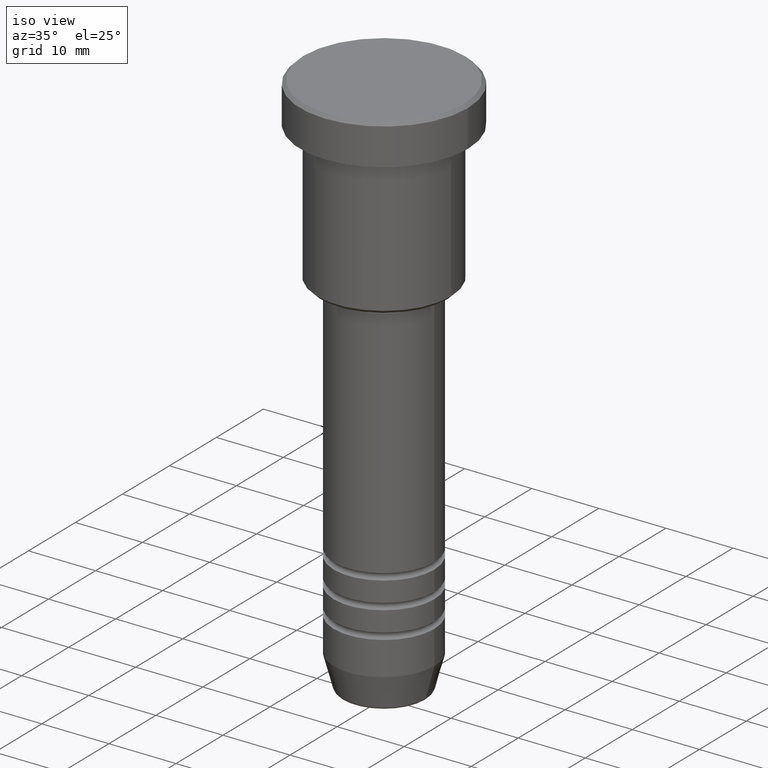
[diagram: clean part render]
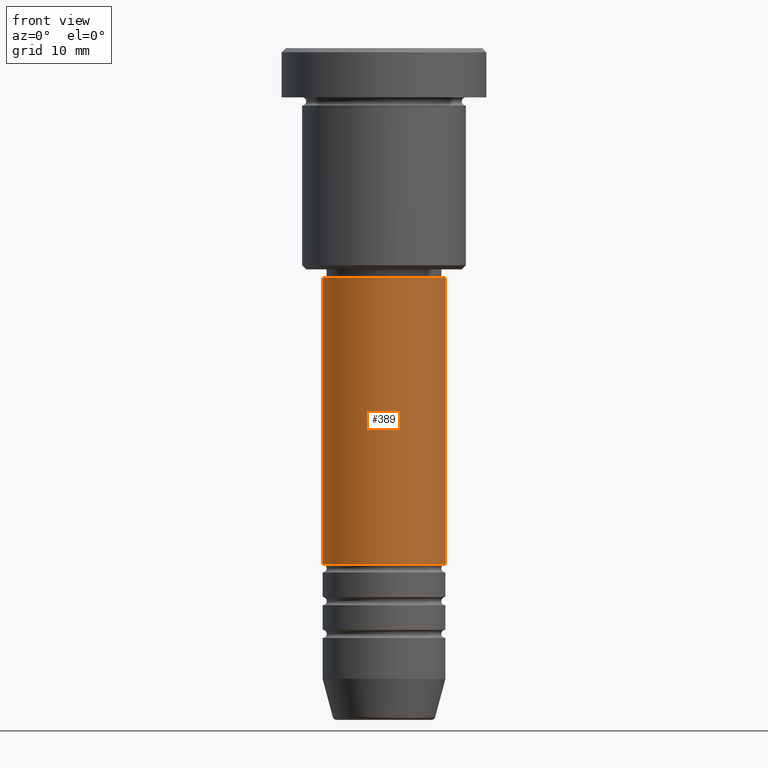
[diagram: tour spotlight — one face highlighted and labeled with its STEP entity id]
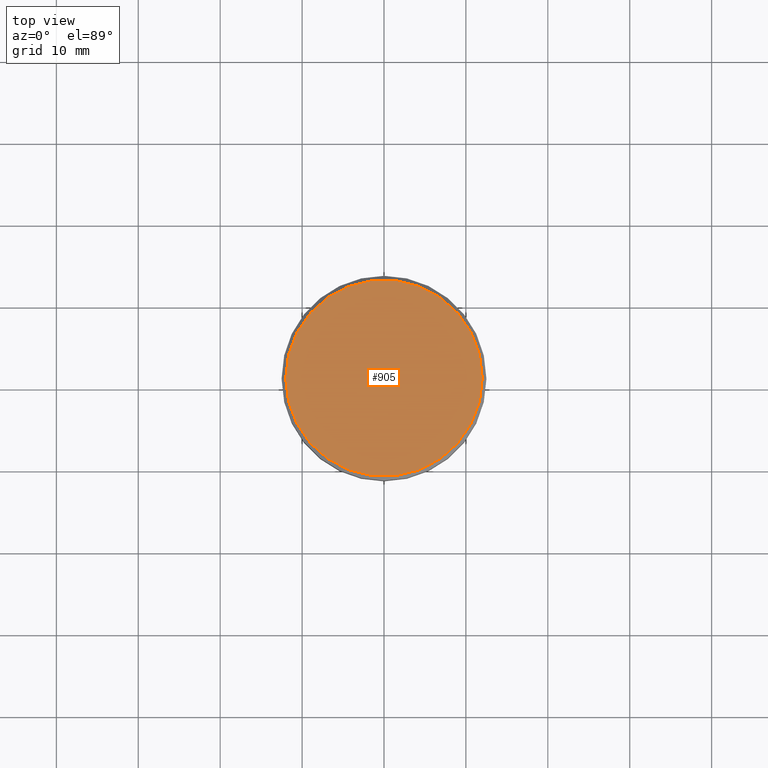
[diagram: tour spotlight — one face highlighted and labeled with its STEP entity id]
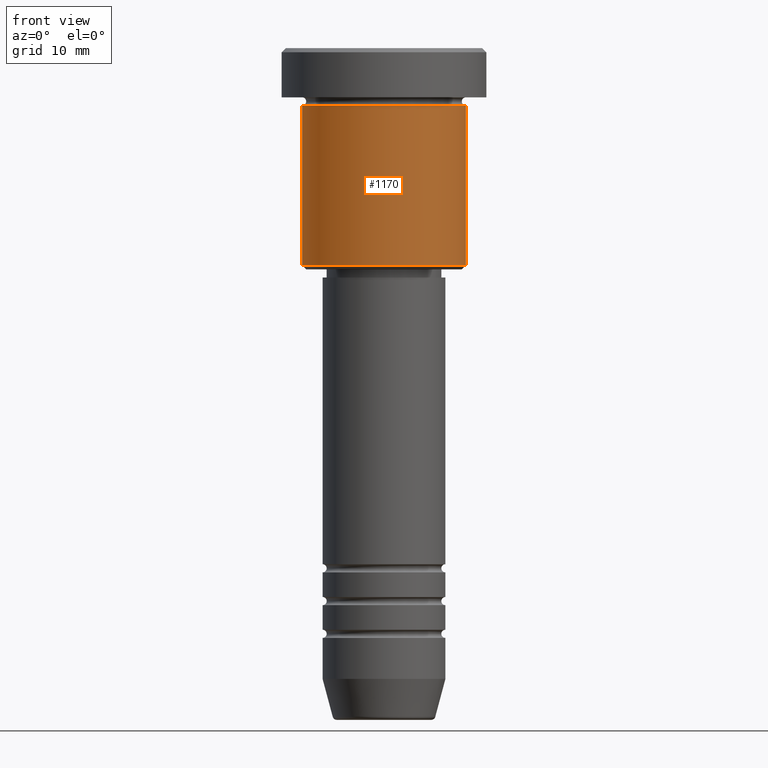
[diagram: tour spotlight — one face highlighted and labeled with its STEP entity id]
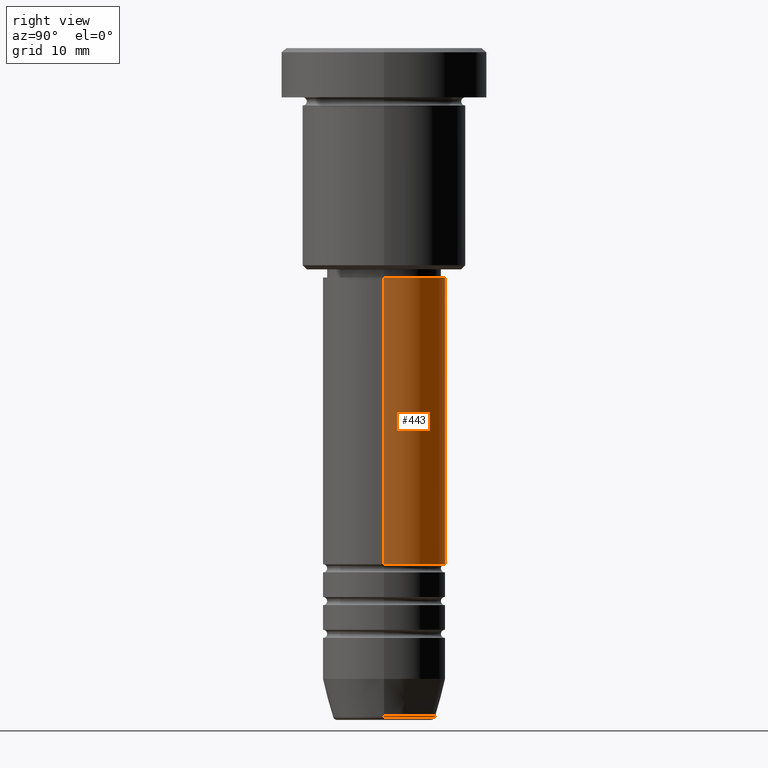
[diagram: tour spotlight — one face highlighted and labeled with its STEP entity id]
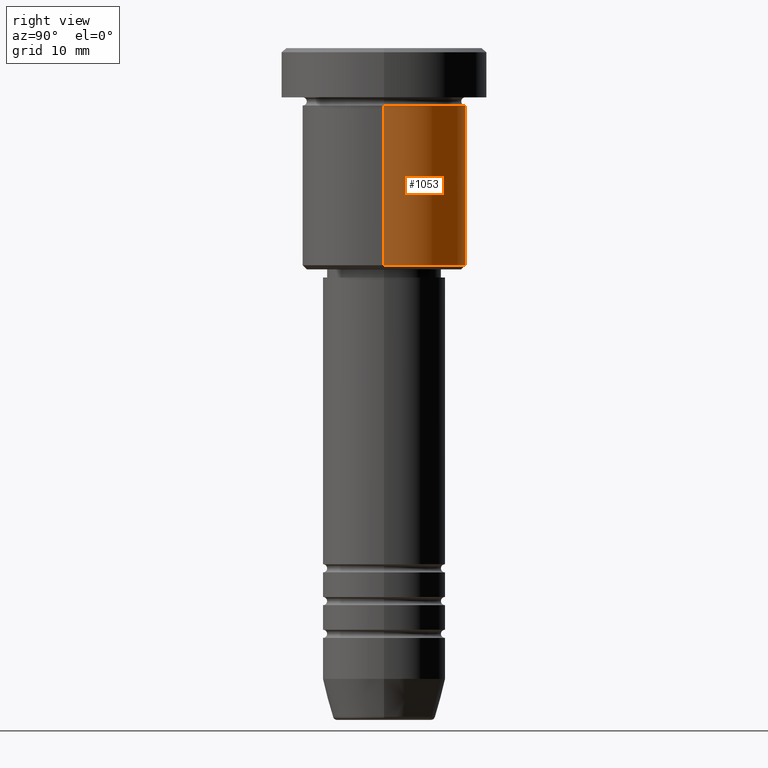
[diagram: tour spotlight — one face highlighted and labeled with its STEP entity id]
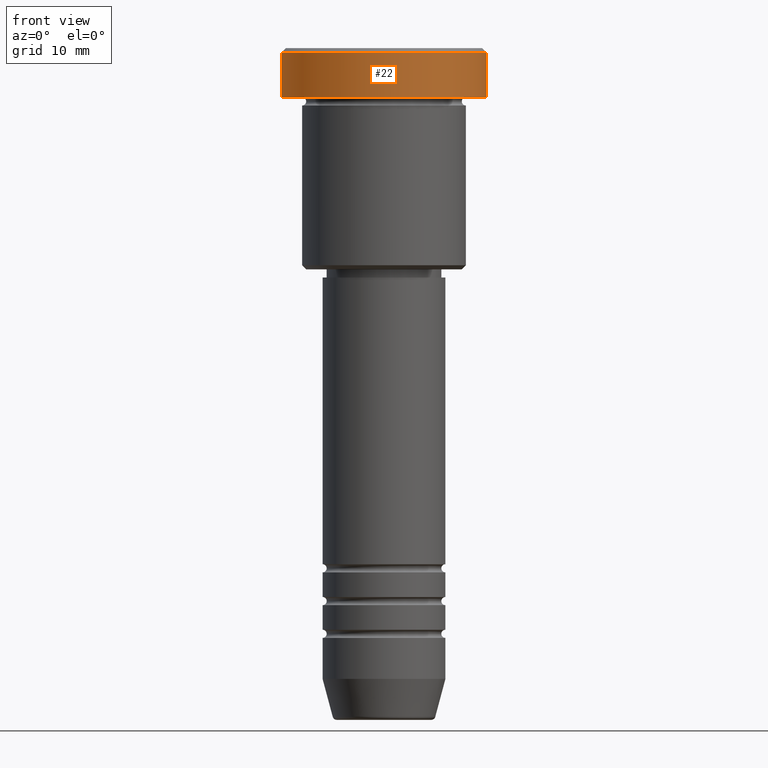
[diagram: tour spotlight — one face highlighted and labeled with its STEP entity id]
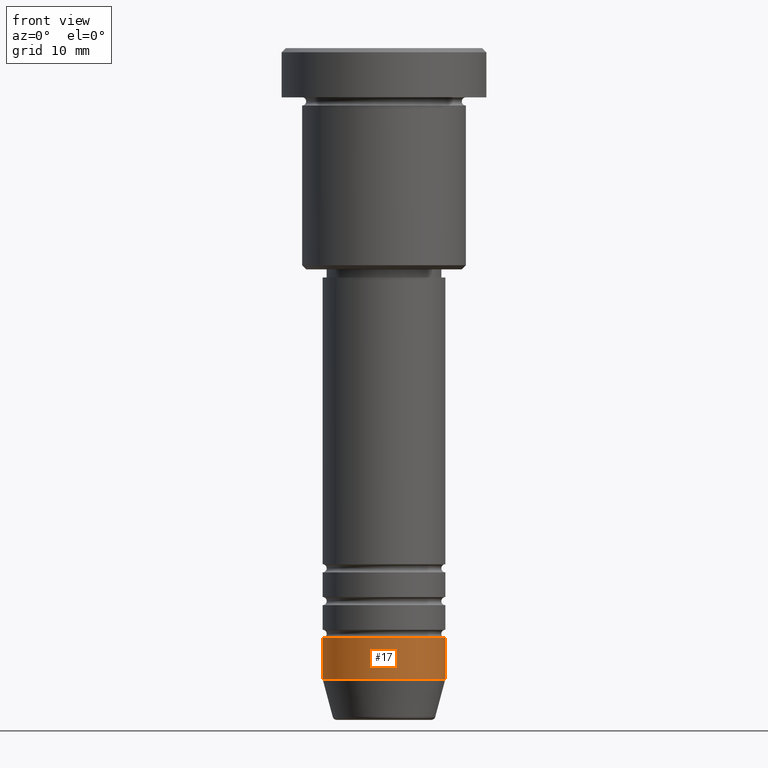
[diagram: tour spotlight — one face highlighted and labeled with its STEP entity id]
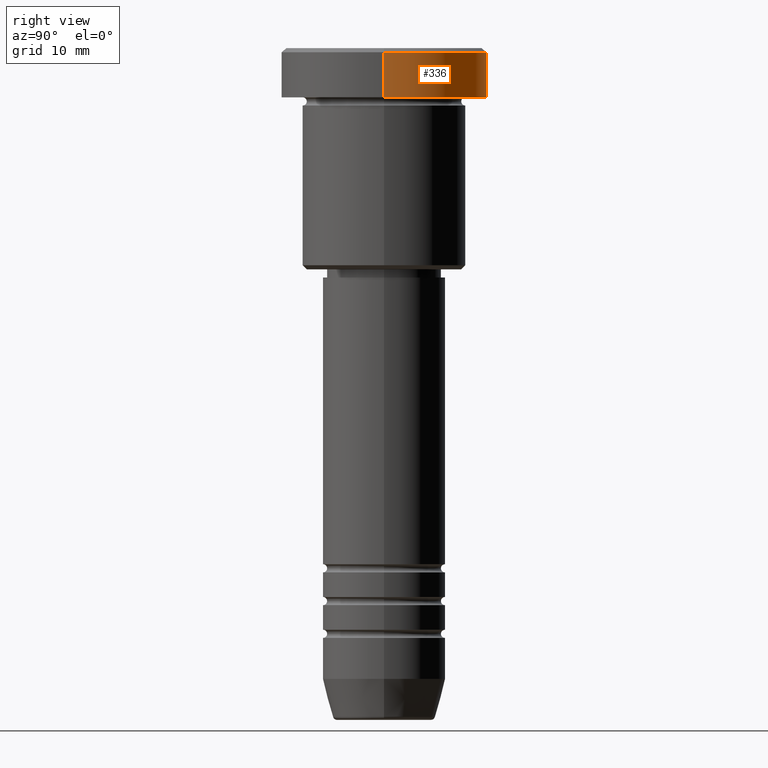
[diagram: tour spotlight — one face highlighted and labeled with its STEP entity id]
A machine part: a face-by-face anatomy tour. The part has 43 B-rep faces; the first image is the clean iso view, then the 8 largest visible faces are spotlighted one at a time (largest first), each with its STEP entity span.

Face 1 — front view, entity #389. In plain terms, the highlighted cylindrical surface (partial cylindrical patch) has radius 7.5 mm, axis along (-0, -0, 1).
Definition (entity closure, byte-faithful):
#15 = FACE_OUTER_BOUND ( 'NONE', #1007, .T. ) ;
#23 = CARTESIAN_POINT ( 'NONE',  ( 0.000000000000000000, 0.000000000000000000, -62.99999999999988631 ) ) ;
#65 = DIRECTION ( 'NONE',  ( -0.000000000000000000, -0.000000000000000000, 1.000000000000000000 ) ) ;
#71 = DIRECTION ( 'NONE',  ( -0.000000000000000000, -0.000000000000000000, 1.000000000000000000 ) ) ;
#93 = ORIENTED_EDGE ( 'NONE', *, *, #873, .F. ) ;
#148 = LINE ( 'NONE', #525, #1015 ) ;
#237 = CARTESIAN_POINT ( 'NONE',  ( 0.000000000000000000, 0.000000000000000000, -28.00000000000001776 ) ) ;
#268 = CARTESIAN_POINT ( 'NONE',  ( 0.000000000000000000, 0.000000000000000000, 0.000000000000000000 ) ) ;
#285 = CARTESIAN_POINT ( 'NONE',  ( 7.500000000000000000, 0.000000000000000000, -28.00000000000001776 ) ) ;
#329 = CIRCLE ( 'NONE', #991, 7.500000000000000888 ) ;
#389 = ADVANCED_FACE ( 'NONE', ( #15 ), #736, .T. ) ;
#435 = CARTESIAN_POINT ( 'NONE',  ( -7.500000000000001776, 9.184850993605149917E-16, -62.99999999999988631 ) ) ;
#460 = ORIENTED_EDGE ( 'NONE', *, *, #1050, .F. ) ;
#473 = CARTESIAN_POINT ( 'NONE',  ( -7.500000000000000000, 9.184850993605147944E-16, -28.00000000000001776 ) ) ;
#504 = EDGE_CURVE ( 'NONE', #658, #699, #329, .T. ) ;
#525 = CARTESIAN_POINT ( 'NONE',  ( 7.500000000000000000, 0.000000000000000000, 0.000000000000000000 ) ) ;
#564 = DIRECTION ( 'NONE',  ( 1.000000000000000000, 0.000000000000000000, 0.000000000000000000 ) ) ;
#586 = AXIS2_PLACEMENT_3D ( 'NONE', #237, #71, #800 ) ;
#625 = VECTOR ( 'NONE', #752, 1000.000000000000000 ) ;
#658 = VERTEX_POINT ( 'NONE', #435 ) ;
#699 = VERTEX_POINT ( 'NONE', #710 ) ;
#710 = CARTESIAN_POINT ( 'NONE',  ( 7.500000000000000888, 0.000000000000000000, -62.99999999999988631 ) ) ;
#720 = VERTEX_POINT ( 'NONE', #473 ) ;
#736 = CYLINDRICAL_SURFACE ( 'NONE', #934, 7.500000000000000000 ) ;
#750 = ORIENTED_EDGE ( 'NONE', *, *, #1145, .T. ) ;
#752 = DIRECTION ( 'NONE',  ( -0.000000000000000000, -0.000000000000000000, 1.000000000000000000 ) ) ;
#762 = DIRECTION ( 'NONE',  ( 1.000000000000000000, 0.000000000000000000, 0.000000000000000000 ) ) ;
#790 = LINE ( 'NONE', #1102, #625 ) ;
#800 = DIRECTION ( 'NONE',  ( 1.000000000000000000, 0.000000000000000000, 0.000000000000000000 ) ) ;
#873 = EDGE_CURVE ( 'NONE', #658, #720, #790, .T. ) ;
#907 = VERTEX_POINT ( 'NONE', #285 ) ;
#934 = AXIS2_PLACEMENT_3D ( 'NONE', #268, #1103, #564 ) ;
#991 = AXIS2_PLACEMENT_3D ( 'NONE', #23, #1114, #762 ) ;
#1007 = EDGE_LOOP ( 'NONE', ( #93, #1025, #750, #460 ) ) ;
#1015 = VECTOR ( 'NONE', #65, 1000.000000000000000 ) ;
#1025 = ORIENTED_EDGE ( 'NONE', *, *, #504, .T. ) ;
#1050 = EDGE_CURVE ( 'NONE', #720, #907, #1128, .T. ) ;
#1102 = CARTESIAN_POINT ( 'NONE',  ( -7.500000000000000000, 9.184850993605147944E-16, 0.000000000000000000 ) ) ;
#1103 = DIRECTION ( 'NONE',  ( -0.000000000000000000, -0.000000000000000000, 1.000000000000000000 ) ) ;
#1114 = DIRECTION ( 'NONE',  ( -0.000000000000000000, -0.000000000000000000, 1.000000000000000000 ) ) ;
#1128 = CIRCLE ( 'NONE', #586, 7.500000000000000000 ) ;
#1145 = EDGE_CURVE ( 'NONE', #699, #907, #148, .T. ) ;

Face 2 — top view, entity #905. In plain terms, the highlighted planar face has unit normal (0, -0, 1).
Definition (entity closure, byte-faithful):
#84 = ORIENTED_EDGE ( 'NONE', *, *, #849, .T. ) ;
#97 = CARTESIAN_POINT ( 'NONE',  ( 12.00000000000001066, 1.500192328955508326E-15, 0.000000000000000000 ) ) ;
#106 = FACE_OUTER_BOUND ( 'NONE', #1142, .T. ) ;
#193 = CARTESIAN_POINT ( 'NONE',  ( 0.000000000000000000, 0.000000000000000000, 0.000000000000000000 ) ) ;
#200 = ORIENTED_EDGE ( 'NONE', *, *, #789, .T. ) ;
#263 = PLANE ( 'NONE',  #292 ) ;
#277 = AXIS2_PLACEMENT_3D ( 'NONE', #574, #1045, #953 ) ;
#292 = AXIS2_PLACEMENT_3D ( 'NONE', #193, #829, #838 ) ;
#355 = CIRCLE ( 'NONE', #277, 12.00000000000001066 ) ;
#357 = VERTEX_POINT ( 'NONE', #97 ) ;
#388 = AXIS2_PLACEMENT_3D ( 'NONE', #400, #682, #498 ) ;
#400 = CARTESIAN_POINT ( 'NONE',  ( 0.000000000000000000, 0.000000000000000000, 0.000000000000000000 ) ) ;
#498 = DIRECTION ( 'NONE',  ( 1.000000000000000000, 0.000000000000000000, 0.000000000000000000 ) ) ;
#534 = VERTEX_POINT ( 'NONE', #949 ) ;
#574 = CARTESIAN_POINT ( 'NONE',  ( 0.000000000000000000, 0.000000000000000000, 0.000000000000000000 ) ) ;
#682 = DIRECTION ( 'NONE',  ( -0.000000000000000000, -0.000000000000000000, 1.000000000000000000 ) ) ;
#789 = EDGE_CURVE ( 'NONE', #357, #534, #355, .T. ) ;
#829 = DIRECTION ( 'NONE',  ( 0.000000000000000000, -0.000000000000000000, 1.000000000000000000 ) ) ;
#838 = DIRECTION ( 'NONE',  ( 1.000000000000000000, 0.000000000000000000, 0.000000000000000000 ) ) ;
#849 = EDGE_CURVE ( 'NONE', #534, #357, #896, .T. ) ;
#896 = CIRCLE ( 'NONE', #388, 12.00000000000001066 ) ;
#905 = ADVANCED_FACE ( 'NONE', ( #106 ), #263, .T. ) ;
#949 = CARTESIAN_POINT ( 'NONE',  ( -12.00000000000001066, 0.000000000000000000, 0.000000000000000000 ) ) ;
#953 = DIRECTION ( 'NONE',  ( 1.000000000000000000, 0.000000000000000000, 0.000000000000000000 ) ) ;
#1045 = DIRECTION ( 'NONE',  ( -0.000000000000000000, -0.000000000000000000, 1.000000000000000000 ) ) ;
#1142 = EDGE_LOOP ( 'NONE', ( #84, #200 ) ) ;

Face 3 — front view, entity #1170. In plain terms, the highlighted cylindrical surface (partial cylindrical patch) has radius 10 mm, axis along (-0, -0, 1).
Definition (entity closure, byte-faithful):
#4 = ORIENTED_EDGE ( 'NONE', *, *, #38, .F. ) ;
#38 = EDGE_CURVE ( 'NONE', #92, #942, #194, .T. ) ;
#49 = ORIENTED_EDGE ( 'NONE', *, *, #840, .T. ) ;
#75 = DIRECTION ( 'NONE',  ( 1.000000000000000000, 0.000000000000000000, 0.000000000000000000 ) ) ;
#92 = VERTEX_POINT ( 'NONE', #1080 ) ;
#121 = DIRECTION ( 'NONE',  ( -0.000000000000000000, -0.000000000000000000, 1.000000000000000000 ) ) ;
#194 = CIRCLE ( 'NONE', #208, 10.00000000000000000 ) ;
#208 = AXIS2_PLACEMENT_3D ( 'NONE', #725, #1087, #75 ) ;
#276 = VECTOR ( 'NONE', #684, 1000.000000000000000 ) ;
#301 = CARTESIAN_POINT ( 'NONE',  ( 10.00000000000000000, 0.000000000000000000, 0.000000000000000000 ) ) ;
#311 = CARTESIAN_POINT ( 'NONE',  ( -10.00000000000000000, 1.224646799147353256E-15, 0.000000000000000000 ) ) ;
#314 = DIRECTION ( 'NONE',  ( -0.000000000000000000, -0.000000000000000000, 1.000000000000000000 ) ) ;
#369 = CARTESIAN_POINT ( 'NONE',  ( 0.000000000000000000, 0.000000000000000000, 0.000000000000000000 ) ) ;
#372 = ORIENTED_EDGE ( 'NONE', *, *, #804, .T. ) ;
#453 = FACE_OUTER_BOUND ( 'NONE', #737, .T. ) ;
#500 = VERTEX_POINT ( 'NONE', #853 ) ;
#518 = ORIENTED_EDGE ( 'NONE', *, *, #572, .F. ) ;
#572 = EDGE_CURVE ( 'NONE', #500, #92, #1152, .T. ) ;
#581 = VERTEX_POINT ( 'NONE', #1041 ) ;
#585 = CIRCLE ( 'NONE', #1109, 10.00000000000000000 ) ;
#684 = DIRECTION ( 'NONE',  ( -0.000000000000000000, -0.000000000000000000, 1.000000000000000000 ) ) ;
#725 = CARTESIAN_POINT ( 'NONE',  ( 0.000000000000000000, 0.000000000000000000, -6.999999999999996447 ) ) ;
#734 = DIRECTION ( 'NONE',  ( -0.000000000000000000, -0.000000000000000000, 1.000000000000000000 ) ) ;
#737 = EDGE_LOOP ( 'NONE', ( #518, #49, #372, #4 ) ) ;
#744 = DIRECTION ( 'NONE',  ( 1.000000000000000000, 0.000000000000000000, 0.000000000000000000 ) ) ;
#766 = CARTESIAN_POINT ( 'NONE',  ( 0.000000000000000000, 0.000000000000000000, -26.49999999999999645 ) ) ;
#804 = EDGE_CURVE ( 'NONE', #581, #942, #1056, .T. ) ;
#834 = CYLINDRICAL_SURFACE ( 'NONE', #1146, 10.00000000000000000 ) ;
#840 = EDGE_CURVE ( 'NONE', #500, #581, #585, .T. ) ;
#853 = CARTESIAN_POINT ( 'NONE',  ( -10.00000000000000000, 1.224646799147353256E-15, -26.49999999999999645 ) ) ;
#870 = CARTESIAN_POINT ( 'NONE',  ( 10.00000000000000000, 0.000000000000000000, -6.999999999999996447 ) ) ;
#942 = VERTEX_POINT ( 'NONE', #870 ) ;
#993 = VECTOR ( 'NONE', #314, 1000.000000000000000 ) ;
#1041 = CARTESIAN_POINT ( 'NONE',  ( 10.00000000000000000, 0.000000000000000000, -26.49999999999999645 ) ) ;
#1056 = LINE ( 'NONE', #301, #993 ) ;
#1080 = CARTESIAN_POINT ( 'NONE',  ( -10.00000000000000000, 1.224646799147353256E-15, -6.999999999999996447 ) ) ;
#1087 = DIRECTION ( 'NONE',  ( -0.000000000000000000, -0.000000000000000000, 1.000000000000000000 ) ) ;
#1109 = AXIS2_PLACEMENT_3D ( 'NONE', #766, #121, #1130 ) ;
#1130 = DIRECTION ( 'NONE',  ( -1.000000000000000000, 0.000000000000000000, 0.000000000000000000 ) ) ;
#1146 = AXIS2_PLACEMENT_3D ( 'NONE', #369, #734, #744 ) ;
#1152 = LINE ( 'NONE', #311, #276 ) ;
#1170 = ADVANCED_FACE ( 'NONE', ( #453 ), #834, .T. ) ;

Face 4 — right view, entity #443. In plain terms, the highlighted cylindrical surface (partial cylindrical patch) has radius 7.5 mm, axis along (-0, -0, 1).
Definition (entity closure, byte-faithful):
#25 = ORIENTED_EDGE ( 'NONE', *, *, #1145, .F. ) ;
#65 = DIRECTION ( 'NONE',  ( -0.000000000000000000, -0.000000000000000000, 1.000000000000000000 ) ) ;
#148 = LINE ( 'NONE', #525, #1015 ) ;
#201 = DIRECTION ( 'NONE',  ( -0.000000000000000000, -0.000000000000000000, 1.000000000000000000 ) ) ;
#211 = CIRCLE ( 'NONE', #1032, 7.500000000000000000 ) ;
#219 = ORIENTED_EDGE ( 'NONE', *, *, #491, .T. ) ;
#285 = CARTESIAN_POINT ( 'NONE',  ( 7.500000000000000000, 0.000000000000000000, -28.00000000000001776 ) ) ;
#305 = CARTESIAN_POINT ( 'NONE',  ( 0.000000000000000000, 0.000000000000000000, 0.000000000000000000 ) ) ;
#326 = DIRECTION ( 'NONE',  ( -0.000000000000000000, -0.000000000000000000, 1.000000000000000000 ) ) ;
#350 = CARTESIAN_POINT ( 'NONE',  ( 0.000000000000000000, 0.000000000000000000, -62.99999999999988631 ) ) ;
#386 = CIRCLE ( 'NONE', #1046, 7.500000000000000888 ) ;
#406 = ORIENTED_EDGE ( 'NONE', *, *, #873, .T. ) ;
#435 = CARTESIAN_POINT ( 'NONE',  ( -7.500000000000001776, 9.184850993605149917E-16, -62.99999999999988631 ) ) ;
#443 = ADVANCED_FACE ( 'NONE', ( #580 ), #1125, .T. ) ;
#473 = CARTESIAN_POINT ( 'NONE',  ( -7.500000000000000000, 9.184850993605147944E-16, -28.00000000000001776 ) ) ;
#491 = EDGE_CURVE ( 'NONE', #699, #658, #386, .T. ) ;
#525 = CARTESIAN_POINT ( 'NONE',  ( 7.500000000000000000, 0.000000000000000000, 0.000000000000000000 ) ) ;
#561 = DIRECTION ( 'NONE',  ( 1.000000000000000000, 0.000000000000000000, 0.000000000000000000 ) ) ;
#580 = FACE_OUTER_BOUND ( 'NONE', #594, .T. ) ;
#594 = EDGE_LOOP ( 'NONE', ( #219, #406, #1091, #25 ) ) ;
#625 = VECTOR ( 'NONE', #752, 1000.000000000000000 ) ;
#658 = VERTEX_POINT ( 'NONE', #435 ) ;
#699 = VERTEX_POINT ( 'NONE', #710 ) ;
#704 = DIRECTION ( 'NONE',  ( 1.000000000000000000, 0.000000000000000000, 0.000000000000000000 ) ) ;
#710 = CARTESIAN_POINT ( 'NONE',  ( 7.500000000000000888, 0.000000000000000000, -62.99999999999988631 ) ) ;
#720 = VERTEX_POINT ( 'NONE', #473 ) ;
#752 = DIRECTION ( 'NONE',  ( -0.000000000000000000, -0.000000000000000000, 1.000000000000000000 ) ) ;
#790 = LINE ( 'NONE', #1102, #625 ) ;
#791 = CARTESIAN_POINT ( 'NONE',  ( 0.000000000000000000, 0.000000000000000000, -28.00000000000001776 ) ) ;
#873 = EDGE_CURVE ( 'NONE', #658, #720, #790, .T. ) ;
#907 = VERTEX_POINT ( 'NONE', #285 ) ;
#918 = AXIS2_PLACEMENT_3D ( 'NONE', #305, #941, #1135 ) ;
#941 = DIRECTION ( 'NONE',  ( -0.000000000000000000, -0.000000000000000000, 1.000000000000000000 ) ) ;
#1015 = VECTOR ( 'NONE', #65, 1000.000000000000000 ) ;
#1032 = AXIS2_PLACEMENT_3D ( 'NONE', #791, #326, #704 ) ;
#1046 = AXIS2_PLACEMENT_3D ( 'NONE', #350, #201, #561 ) ;
#1091 = ORIENTED_EDGE ( 'NONE', *, *, #1119, .F. ) ;
#1102 = CARTESIAN_POINT ( 'NONE',  ( -7.500000000000000000, 9.184850993605147944E-16, 0.000000000000000000 ) ) ;
#1119 = EDGE_CURVE ( 'NONE', #907, #720, #211, .T. ) ;
#1125 = CYLINDRICAL_SURFACE ( 'NONE', #918, 7.500000000000000000 ) ;
#1135 = DIRECTION ( 'NONE',  ( 1.000000000000000000, 0.000000000000000000, 0.000000000000000000 ) ) ;
#1145 = EDGE_CURVE ( 'NONE', #699, #907, #148, .T. ) ;

Face 5 — right view, entity #1053. In plain terms, the highlighted cylindrical surface (partial cylindrical patch) has radius 10 mm, axis along (-0, -0, 1).
Definition (entity closure, byte-faithful):
#33 = DIRECTION ( 'NONE',  ( -1.000000000000000000, 0.000000000000000000, 0.000000000000000000 ) ) ;
#44 = AXIS2_PLACEMENT_3D ( 'NONE', #700, #205, #943 ) ;
#47 = DIRECTION ( 'NONE',  ( -0.000000000000000000, -0.000000000000000000, 1.000000000000000000 ) ) ;
#92 = VERTEX_POINT ( 'NONE', #1080 ) ;
#135 = CIRCLE ( 'NONE', #195, 10.00000000000000000 ) ;
#141 = CYLINDRICAL_SURFACE ( 'NONE', #258, 10.00000000000000000 ) ;
#195 = AXIS2_PLACEMENT_3D ( 'NONE', #962, #47, #33 ) ;
#205 = DIRECTION ( 'NONE',  ( -0.000000000000000000, -0.000000000000000000, 1.000000000000000000 ) ) ;
#226 = DIRECTION ( 'NONE',  ( -0.000000000000000000, -0.000000000000000000, 1.000000000000000000 ) ) ;
#258 = AXIS2_PLACEMENT_3D ( 'NONE', #979, #226, #520 ) ;
#276 = VECTOR ( 'NONE', #684, 1000.000000000000000 ) ;
#301 = CARTESIAN_POINT ( 'NONE',  ( 10.00000000000000000, 0.000000000000000000, 0.000000000000000000 ) ) ;
#311 = CARTESIAN_POINT ( 'NONE',  ( -10.00000000000000000, 1.224646799147353256E-15, 0.000000000000000000 ) ) ;
#314 = DIRECTION ( 'NONE',  ( -0.000000000000000000, -0.000000000000000000, 1.000000000000000000 ) ) ;
#421 = EDGE_LOOP ( 'NONE', ( #885, #1129, #769, #505 ) ) ;
#500 = VERTEX_POINT ( 'NONE', #853 ) ;
#505 = ORIENTED_EDGE ( 'NONE', *, *, #804, .F. ) ;
#520 = DIRECTION ( 'NONE',  ( 1.000000000000000000, 0.000000000000000000, 0.000000000000000000 ) ) ;
#567 = CIRCLE ( 'NONE', #44, 10.00000000000000000 ) ;
#572 = EDGE_CURVE ( 'NONE', #500, #92, #1152, .T. ) ;
#576 = EDGE_CURVE ( 'NONE', #942, #92, #567, .T. ) ;
#581 = VERTEX_POINT ( 'NONE', #1041 ) ;
#605 = EDGE_CURVE ( 'NONE', #581, #500, #135, .T. ) ;
#684 = DIRECTION ( 'NONE',  ( -0.000000000000000000, -0.000000000000000000, 1.000000000000000000 ) ) ;
#686 = FACE_OUTER_BOUND ( 'NONE', #421, .T. ) ;
#700 = CARTESIAN_POINT ( 'NONE',  ( 0.000000000000000000, 0.000000000000000000, -6.999999999999996447 ) ) ;
#769 = ORIENTED_EDGE ( 'NONE', *, *, #576, .F. ) ;
#804 = EDGE_CURVE ( 'NONE', #581, #942, #1056, .T. ) ;
#853 = CARTESIAN_POINT ( 'NONE',  ( -10.00000000000000000, 1.224646799147353256E-15, -26.49999999999999645 ) ) ;
#870 = CARTESIAN_POINT ( 'NONE',  ( 10.00000000000000000, 0.000000000000000000, -6.999999999999996447 ) ) ;
#885 = ORIENTED_EDGE ( 'NONE', *, *, #605, .T. ) ;
#942 = VERTEX_POINT ( 'NONE', #870 ) ;
#943 = DIRECTION ( 'NONE',  ( 1.000000000000000000, 0.000000000000000000, 0.000000000000000000 ) ) ;
#962 = CARTESIAN_POINT ( 'NONE',  ( 0.000000000000000000, 0.000000000000000000, -26.49999999999999645 ) ) ;
#979 = CARTESIAN_POINT ( 'NONE',  ( 0.000000000000000000, 0.000000000000000000, 0.000000000000000000 ) ) ;
#993 = VECTOR ( 'NONE', #314, 1000.000000000000000 ) ;
#1041 = CARTESIAN_POINT ( 'NONE',  ( 10.00000000000000000, 0.000000000000000000, -26.49999999999999645 ) ) ;
#1053 = ADVANCED_FACE ( 'NONE', ( #686 ), #141, .T. ) ;
#1056 = LINE ( 'NONE', #301, #993 ) ;
#1080 = CARTESIAN_POINT ( 'NONE',  ( -10.00000000000000000, 1.224646799147353256E-15, -6.999999999999996447 ) ) ;
#1129 = ORIENTED_EDGE ( 'NONE', *, *, #572, .T. ) ;
#1152 = LINE ( 'NONE', #311, #276 ) ;

Face 6 — front view, entity #22. In plain terms, the highlighted cylindrical surface (partial cylindrical patch) has radius 12.5 mm, axis along (-0, -0, 1).
Definition (entity closure, byte-faithful):
#19 = DIRECTION ( 'NONE',  ( -0.000000000000000000, -0.000000000000000000, 1.000000000000000000 ) ) ;
#22 = ADVANCED_FACE ( 'NONE', ( #902 ), #718, .T. ) ;
#30 = AXIS2_PLACEMENT_3D ( 'NONE', #178, #19, #911 ) ;
#36 = DIRECTION ( 'NONE',  ( 1.000000000000000000, 0.000000000000000000, 0.000000000000000000 ) ) ;
#81 = DIRECTION ( 'NONE',  ( -0.000000000000000000, -0.000000000000000000, 1.000000000000000000 ) ) ;
#104 = CIRCLE ( 'NONE', #30, 12.50000000000000000 ) ;
#108 = EDGE_CURVE ( 'NONE', #814, #578, #224, .T. ) ;
#178 = CARTESIAN_POINT ( 'NONE',  ( 0.000000000000000000, 0.000000000000000000, -5.999999999999996447 ) ) ;
#224 = LINE ( 'NONE', #503, #677 ) ;
#315 = CARTESIAN_POINT ( 'NONE',  ( -12.50000000000000000, 1.530808498934191521E-15, -5.999999999999996447 ) ) ;
#339 = ORIENTED_EDGE ( 'NONE', *, *, #650, .F. ) ;
#409 = CARTESIAN_POINT ( 'NONE',  ( 12.50000000000000000, 0.000000000000000000, -5.999999999999996447 ) ) ;
#430 = EDGE_CURVE ( 'NONE', #578, #743, #1126, .T. ) ;
#490 = AXIS2_PLACEMENT_3D ( 'NONE', #836, #751, #36 ) ;
#503 = CARTESIAN_POINT ( 'NONE',  ( 12.50000000000000000, 0.000000000000000000, 0.000000000000000000 ) ) ;
#578 = VERTEX_POINT ( 'NONE', #883 ) ;
#650 = EDGE_CURVE ( 'NONE', #1075, #743, #1172, .T. ) ;
#677 = VECTOR ( 'NONE', #892, 1000.000000000000000 ) ;
#718 = CYLINDRICAL_SURFACE ( 'NONE', #730, 12.50000000000000000 ) ;
#730 = AXIS2_PLACEMENT_3D ( 'NONE', #1081, #807, #987 ) ;
#743 = VERTEX_POINT ( 'NONE', #842 ) ;
#751 = DIRECTION ( 'NONE',  ( 0.000000000000000000, 0.000000000000000000, -1.000000000000000000 ) ) ;
#807 = DIRECTION ( 'NONE',  ( -0.000000000000000000, -0.000000000000000000, 1.000000000000000000 ) ) ;
#814 = VERTEX_POINT ( 'NONE', #409 ) ;
#823 = ORIENTED_EDGE ( 'NONE', *, *, #108, .T. ) ;
#836 = CARTESIAN_POINT ( 'NONE',  ( 0.000000000000000000, 0.000000000000000000, -0.4999999999999917843 ) ) ;
#842 = CARTESIAN_POINT ( 'NONE',  ( -12.50000000000000000, 1.530808498934191521E-15, -0.4999999999999917843 ) ) ;
#883 = CARTESIAN_POINT ( 'NONE',  ( 12.50000000000000000, 0.000000000000000000, -0.4999999999999917843 ) ) ;
#884 = EDGE_CURVE ( 'NONE', #1075, #814, #104, .T. ) ;
#892 = DIRECTION ( 'NONE',  ( -0.000000000000000000, -0.000000000000000000, 1.000000000000000000 ) ) ;
#902 = FACE_OUTER_BOUND ( 'NONE', #912, .T. ) ;
#911 = DIRECTION ( 'NONE',  ( 1.000000000000000000, 0.000000000000000000, 0.000000000000000000 ) ) ;
#912 = EDGE_LOOP ( 'NONE', ( #339, #989, #823, #1151 ) ) ;
#913 = CARTESIAN_POINT ( 'NONE',  ( -12.50000000000000000, 1.530808498934191521E-15, 0.000000000000000000 ) ) ;
#987 = DIRECTION ( 'NONE',  ( 1.000000000000000000, 0.000000000000000000, 0.000000000000000000 ) ) ;
#989 = ORIENTED_EDGE ( 'NONE', *, *, #884, .T. ) ;
#1075 = VERTEX_POINT ( 'NONE', #315 ) ;
#1081 = CARTESIAN_POINT ( 'NONE',  ( 0.000000000000000000, 0.000000000000000000, 0.000000000000000000 ) ) ;
#1126 = CIRCLE ( 'NONE', #490, 12.50000000000000000 ) ;
#1151 = ORIENTED_EDGE ( 'NONE', *, *, #430, .T. ) ;
#1172 = LINE ( 'NONE', #913, #1175 ) ;
#1175 = VECTOR ( 'NONE', #81, 1000.000000000000000 ) ;

Face 7 — front view, entity #17. In plain terms, the highlighted cylindrical surface (partial cylindrical patch) has radius 7.5 mm, axis along (-0, -0, 1).
Definition (entity closure, byte-faithful):
#17 = ADVANCED_FACE ( 'NONE', ( #246 ), #813, .T. ) ;
#41 = LINE ( 'NONE', #1057, #1068 ) ;
#59 = CARTESIAN_POINT ( 'NONE',  ( 7.500000000000000000, 0.000000000000000000, -72.00000000000001421 ) ) ;
#98 = DIRECTION ( 'NONE',  ( -0.000000000000000000, -0.000000000000000000, 1.000000000000000000 ) ) ;
#215 = CARTESIAN_POINT ( 'NONE',  ( 0.000000000000000000, 0.000000000000000000, -72.00000000000001421 ) ) ;
#246 = FACE_OUTER_BOUND ( 'NONE', #441, .T. ) ;
#299 = VERTEX_POINT ( 'NONE', #731 ) ;
#338 = DIRECTION ( 'NONE',  ( -0.000000000000000000, -0.000000000000000000, 1.000000000000000000 ) ) ;
#377 = DIRECTION ( 'NONE',  ( 1.000000000000000000, 0.000000000000000000, 0.000000000000000000 ) ) ;
#399 = CARTESIAN_POINT ( 'NONE',  ( -7.500000000000000000, 9.184850993605147944E-16, -72.00000000000001421 ) ) ;
#408 = ORIENTED_EDGE ( 'NONE', *, *, #747, .T. ) ;
#414 = EDGE_CURVE ( 'NONE', #299, #1085, #542, .T. ) ;
#441 = EDGE_LOOP ( 'NONE', ( #452, #408, #805, #1104 ) ) ;
#452 = ORIENTED_EDGE ( 'NONE', *, *, #1095, .F. ) ;
#467 = VERTEX_POINT ( 'NONE', #399 ) ;
#493 = AXIS2_PLACEMENT_3D ( 'NONE', #1031, #98, #377 ) ;
#542 = LINE ( 'NONE', #560, #679 ) ;
#551 = CIRCLE ( 'NONE', #950, 7.500000000000000000 ) ;
#560 = CARTESIAN_POINT ( 'NONE',  ( 7.500000000000000000, 0.000000000000000000, 0.000000000000000000 ) ) ;
#616 = CARTESIAN_POINT ( 'NONE',  ( 0.000000000000000000, 0.000000000000000000, 0.000000000000000000 ) ) ;
#660 = VERTEX_POINT ( 'NONE', #1181 ) ;
#672 = DIRECTION ( 'NONE',  ( -0.000000000000000000, -0.000000000000000000, 1.000000000000000000 ) ) ;
#679 = VECTOR ( 'NONE', #929, 1000.000000000000000 ) ;
#731 = CARTESIAN_POINT ( 'NONE',  ( 7.500000000000000000, 0.000000000000000000, -77.00000000000000000 ) ) ;
#747 = EDGE_CURVE ( 'NONE', #660, #299, #919, .T. ) ;
#778 = DIRECTION ( 'NONE',  ( 1.000000000000000000, 0.000000000000000000, 0.000000000000000000 ) ) ;
#805 = ORIENTED_EDGE ( 'NONE', *, *, #414, .T. ) ;
#813 = CYLINDRICAL_SURFACE ( 'NONE', #1063, 7.500000000000000000 ) ;
#862 = EDGE_CURVE ( 'NONE', #467, #1085, #551, .T. ) ;
#891 = DIRECTION ( 'NONE',  ( -0.000000000000000000, -0.000000000000000000, 1.000000000000000000 ) ) ;
#919 = CIRCLE ( 'NONE', #493, 7.500000000000000000 ) ;
#929 = DIRECTION ( 'NONE',  ( -0.000000000000000000, -0.000000000000000000, 1.000000000000000000 ) ) ;
#950 = AXIS2_PLACEMENT_3D ( 'NONE', #215, #672, #778 ) ;
#997 = DIRECTION ( 'NONE',  ( 1.000000000000000000, 0.000000000000000000, 0.000000000000000000 ) ) ;
#1031 = CARTESIAN_POINT ( 'NONE',  ( 0.000000000000000000, 0.000000000000000000, -77.00000000000000000 ) ) ;
#1057 = CARTESIAN_POINT ( 'NONE',  ( -7.500000000000000000, 9.184850993605147944E-16, 0.000000000000000000 ) ) ;
#1063 = AXIS2_PLACEMENT_3D ( 'NONE', #616, #338, #997 ) ;
#1068 = VECTOR ( 'NONE', #891, 1000.000000000000000 ) ;
#1085 = VERTEX_POINT ( 'NONE', #59 ) ;
#1095 = EDGE_CURVE ( 'NONE', #660, #467, #41, .T. ) ;
#1104 = ORIENTED_EDGE ( 'NONE', *, *, #862, .F. ) ;
#1181 = CARTESIAN_POINT ( 'NONE',  ( -7.500000000000000000, 9.184850993605147944E-16, -77.00000000000000000 ) ) ;

Face 8 — right view, entity #336. In plain terms, the highlighted cylindrical surface (partial cylindrical patch) has radius 12.5 mm, axis along (-0, -0, 1).
Definition (entity closure, byte-faithful):
#5 = DIRECTION ( 'NONE',  ( 1.000000000000000000, 0.000000000000000000, 0.000000000000000000 ) ) ;
#27 = CIRCLE ( 'NONE', #547, 12.50000000000000000 ) ;
#40 = ORIENTED_EDGE ( 'NONE', *, *, #284, .T. ) ;
#58 = CARTESIAN_POINT ( 'NONE',  ( 0.000000000000000000, 0.000000000000000000, -0.4999999999999917843 ) ) ;
#81 = DIRECTION ( 'NONE',  ( -0.000000000000000000, -0.000000000000000000, 1.000000000000000000 ) ) ;
#108 = EDGE_CURVE ( 'NONE', #814, #578, #224, .T. ) ;
#224 = LINE ( 'NONE', #503, #677 ) ;
#266 = DIRECTION ( 'NONE',  ( 1.000000000000000000, 0.000000000000000000, 0.000000000000000000 ) ) ;
#284 = EDGE_CURVE ( 'NONE', #743, #578, #27, .T. ) ;
#288 = DIRECTION ( 'NONE',  ( 1.000000000000000000, 0.000000000000000000, 0.000000000000000000 ) ) ;
#315 = CARTESIAN_POINT ( 'NONE',  ( -12.50000000000000000, 1.530808498934191521E-15, -5.999999999999996447 ) ) ;
#336 = ADVANCED_FACE ( 'NONE', ( #643 ), #553, .T. ) ;
#409 = CARTESIAN_POINT ( 'NONE',  ( 12.50000000000000000, 0.000000000000000000, -5.999999999999996447 ) ) ;
#420 = DIRECTION ( 'NONE',  ( 0.000000000000000000, 0.000000000000000000, -1.000000000000000000 ) ) ;
#484 = EDGE_CURVE ( 'NONE', #814, #1075, #732, .T. ) ;
#503 = CARTESIAN_POINT ( 'NONE',  ( 12.50000000000000000, 0.000000000000000000, 0.000000000000000000 ) ) ;
#532 = AXIS2_PLACEMENT_3D ( 'NONE', #924, #831, #5 ) ;
#547 = AXIS2_PLACEMENT_3D ( 'NONE', #58, #420, #266 ) ;
#553 = CYLINDRICAL_SURFACE ( 'NONE', #532, 12.50000000000000000 ) ;
#578 = VERTEX_POINT ( 'NONE', #883 ) ;
#622 = CARTESIAN_POINT ( 'NONE',  ( 0.000000000000000000, 0.000000000000000000, -5.999999999999996447 ) ) ;
#643 = FACE_OUTER_BOUND ( 'NONE', #1070, .T. ) ;
#650 = EDGE_CURVE ( 'NONE', #1075, #743, #1172, .T. ) ;
#677 = VECTOR ( 'NONE', #892, 1000.000000000000000 ) ;
#732 = CIRCLE ( 'NONE', #857, 12.50000000000000000 ) ;
#738 = ORIENTED_EDGE ( 'NONE', *, *, #484, .T. ) ;
#743 = VERTEX_POINT ( 'NONE', #842 ) ;
#765 = ORIENTED_EDGE ( 'NONE', *, *, #108, .F. ) ;
#810 = DIRECTION ( 'NONE',  ( -0.000000000000000000, -0.000000000000000000, 1.000000000000000000 ) ) ;
#814 = VERTEX_POINT ( 'NONE', #409 ) ;
#831 = DIRECTION ( 'NONE',  ( -0.000000000000000000, -0.000000000000000000, 1.000000000000000000 ) ) ;
#842 = CARTESIAN_POINT ( 'NONE',  ( -12.50000000000000000, 1.530808498934191521E-15, -0.4999999999999917843 ) ) ;
#857 = AXIS2_PLACEMENT_3D ( 'NONE', #622, #810, #288 ) ;
#883 = CARTESIAN_POINT ( 'NONE',  ( 12.50000000000000000, 0.000000000000000000, -0.4999999999999917843 ) ) ;
#892 = DIRECTION ( 'NONE',  ( -0.000000000000000000, -0.000000000000000000, 1.000000000000000000 ) ) ;
#913 = CARTESIAN_POINT ( 'NONE',  ( -12.50000000000000000, 1.530808498934191521E-15, 0.000000000000000000 ) ) ;
#924 = CARTESIAN_POINT ( 'NONE',  ( 0.000000000000000000, 0.000000000000000000, 0.000000000000000000 ) ) ;
#1070 = EDGE_LOOP ( 'NONE', ( #738, #1134, #40, #765 ) ) ;
#1075 = VERTEX_POINT ( 'NONE', #315 ) ;
#1134 = ORIENTED_EDGE ( 'NONE', *, *, #650, .T. ) ;
#1172 = LINE ( 'NONE', #913, #1175 ) ;
#1175 = VECTOR ( 'NONE', #81, 1000.000000000000000 ) ;